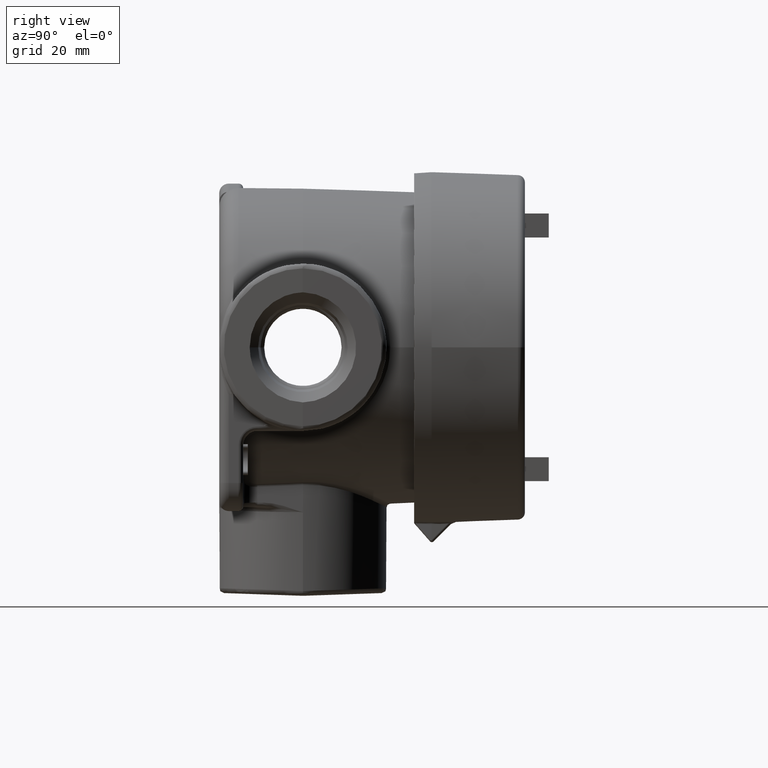
[diagram: clean part render]
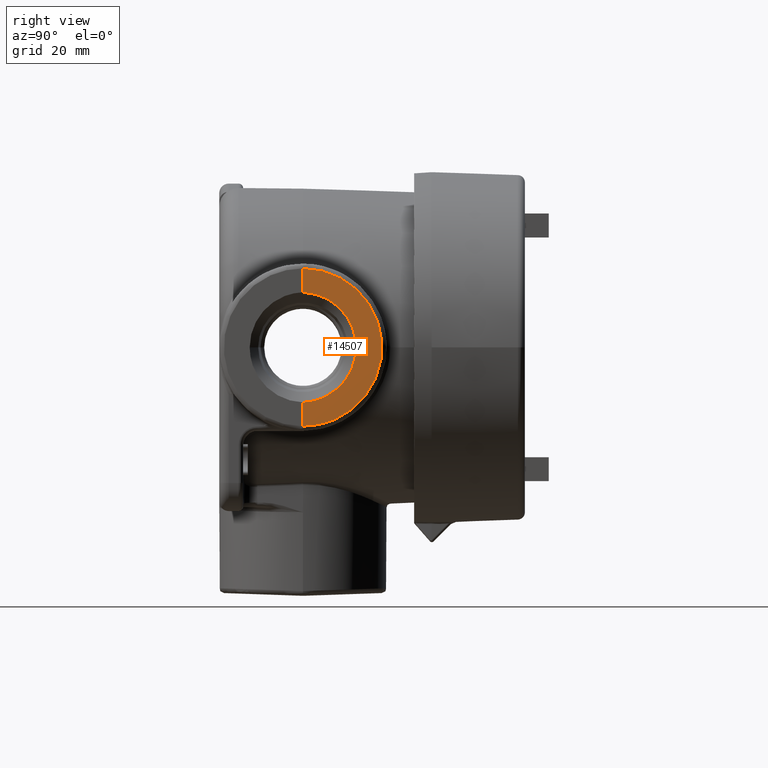
[diagram: same view with one face highlighted and labeled with its STEP entity id]
A machine part, right view. The second image highlights one B-rep face of the part: STEP entity #14507.
In plain terms, the highlighted planar face has unit normal (-0.9994, -0.0349, -0).
Its self-contained STEP definition (entity closure, byte-faithful):
#65=ELLIPSE('',#15512,0.721819406663388,0.720939712716097);
#67=ELLIPSE('',#15518,1.03212874494423,1.0315);
#245=PLANE('',#15517);
#850=LINE('',#25136,#2125);
#851=LINE('',#25139,#2126);
#2125=VECTOR('',#16800,0.393700787401575);
#2126=VECTOR('',#16803,0.393700787401575);
#3375=FACE_OUTER_BOUND('',#4253,.T.);
#4253=EDGE_LOOP('',(#10180,#10181,#10182,#10183));
#6267=VERTEX_POINT('',#25121);
#6269=VERTEX_POINT('',#25124);
#6272=VERTEX_POINT('',#25135);
#6273=VERTEX_POINT('',#25137);
#7770=EDGE_CURVE('',#6269,#6267,#65,.T.);
#7776=EDGE_CURVE('',#6267,#6272,#850,.T.);
#7777=EDGE_CURVE('',#6273,#6272,#67,.T.);
#7778=EDGE_CURVE('',#6273,#6269,#851,.T.);
#10180=ORIENTED_EDGE('',*,*,#7770,.T.);
#10181=ORIENTED_EDGE('',*,*,#7776,.T.);
#10182=ORIENTED_EDGE('',*,*,#7777,.F.);
#10183=ORIENTED_EDGE('',*,*,#7778,.T.);
#14507=ADVANCED_FACE('',(#3375),#245,.F.);
#15512=AXIS2_PLACEMENT_3D('',#25125,#16786,#16787);
#15517=AXIS2_PLACEMENT_3D('',#25134,#16798,#16799);
#15518=AXIS2_PLACEMENT_3D('',#25138,#16801,#16802);
#16786=DIRECTION('center_axis',(-0.999390827019096,-0.034899496702501,0.));
#16787=DIRECTION('ref_axis',(0.0348994967025011,-0.999390827019096,-1.43181366141842E-15));
#16798=DIRECTION('center_axis',(-0.999390827019096,-0.034899496702501,0.));
#16799=DIRECTION('ref_axis',(0.,0.,1.));
#16800=DIRECTION('',(0.,0.,-1.));
#16801=DIRECTION('center_axis',(-0.999390827019096,-0.034899496702501,0.));
#16802=DIRECTION('ref_axis',(-0.034899496702501,0.999390827019096,0.));
#16803=DIRECTION('',(0.,0.,-1.));
#25121=CARTESIAN_POINT('',(3.25,-2.4056,-0.7205));
#25124=CARTESIAN_POINT('',(3.25,-2.4056,0.7205));
#25125=CARTESIAN_POINT('Origin',(3.25087969378374,-2.43079113400265,8.74191357972564E-17));
#25134=CARTESIAN_POINT('Origin',(3.25,-2.4056,0.));
#25135=CARTESIAN_POINT('',(3.25,-2.4056,-1.03149769378592));
#25136=CARTESIAN_POINT('',(3.25,-2.4056,0.));
#25137=CARTESIAN_POINT('',(3.25,-2.4056,1.03149769378592));
#25138=CARTESIAN_POINT('Origin',(3.24992383017002,-2.40341878145609,0.));
#25139=CARTESIAN_POINT('',(3.25,-2.4056,0.));